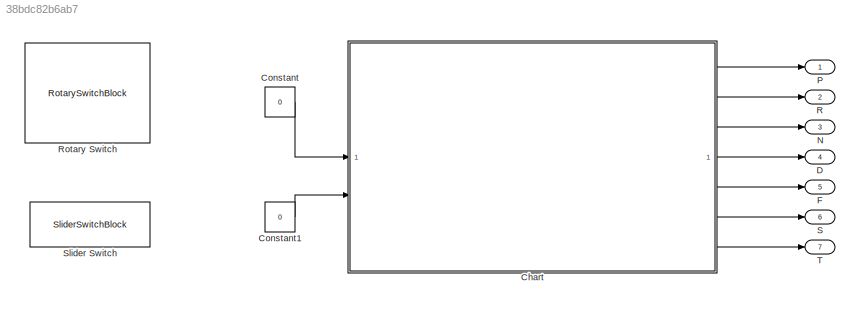
MODEL slx_38bdc82b6ab7
KIND model
CONFIG AbsTol = auto
CONFIG EnableMultiTasking = off
CONFIG FixedStep = auto
CONFIG MaxStep = auto
CONFIG MinStep = auto
CONFIG RelTol = 1e-3
CONFIG SampleTimeConstraint = Unconstrained
CONFIG SolverName = VariableStepAuto
CONFIG StartTime = 0.0
CONFIG StopTime = inf
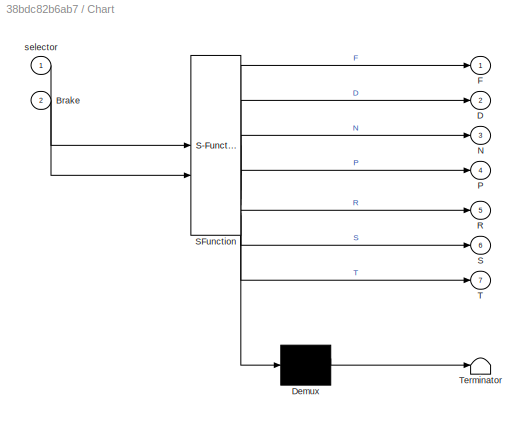
BLOCK [SubSystem] Chart
  ErrorFcn = Stateflow.Translate.translate
  PermitHierarchicalResolution = ExplicitOnly
  PortSchema = {"entries":[{"content":{"sides":[{"content":{"connectorIds":["In1","In2"]},"type":"ConnectorPlacement.EquallySpacedRectSide","uuid":"e4c66ebb-7da8-44e5-99b8-7444c5aa35cd"},{"content":{"connectorIds":["Out4","Out5","Out3","Out2","Out1","Out6","Out7"],"side":"RIGHT"},"type":"ConnectorPlacement.EquallySpacedRectSide","uuid":"c40422dc-742f-4821-91a3-3b1c75b25b89"},{"content":{"side":"TOP"},"type":"Con...<+270ch>
  SFBlockType = Chart
  TreatAsAtomicUnit = on
BLOCK [Demux] Chart/ Demux 
  Outputs = 1
BLOCK [S-Function] Chart/ SFunction 
  EnableBusSupport = off
  FunctionName = sf_sfun
  PortCounts = [2 8]
  SFcnIsStateOwnerBlock = off
  SFunctionDeploymentMode = off
  Tag = Stateflow S-Function 3
BLOCK [Terminator] Chart/ Terminator 
BLOCK [Inport] Chart/Brake
  Port = 2
BLOCK [Outport] Chart/D
  Port = 2
BLOCK [Outport] Chart/F
BLOCK [Outport] Chart/N
  Port = 3
BLOCK [Outport] Chart/P
  Port = 4
BLOCK [Outport] Chart/R
  Port = 5
BLOCK [Outport] Chart/S
  Port = 6
BLOCK [Outport] Chart/T
  Port = 7
BLOCK [Inport] Chart/selector
BLOCK [Constant] Constant
  OutDataTypeStr = uint8
  Value = 0
BLOCK [Constant] Constant1
  OutDataTypeStr = uint8
  Value = 0
BLOCK [Outport] D
  OutDataTypeStr = uint8
  Port = 4
BLOCK [Outport] F
  OutDataTypeStr = uint8
  Port = 5
BLOCK [Outport] N
  OutDataTypeStr = uint8
  Port = 3
BLOCK [Outport] P
  OutDataTypeStr = uint8
BLOCK [Outport] R
  OutDataTypeStr = uint8
  Port = 2
BLOCK [RotarySwitchBlock] Rotary Switch
BLOCK [Outport] S
  OutDataTypeStr = uint8
  Port = 6
BLOCK [SliderSwitchBlock] Slider Switch
BLOCK [Outport] T
  OutDataTypeStr = uint8
  Port = 7
LINE Chart:1 -> F:1
LINE Chart:2 -> D:1
LINE Chart:3 -> N:1
LINE Chart:4 -> P:1
LINE Chart:5 -> R:1
LINE Chart:6 -> S:1
LINE Chart:7 -> T:1
LINE Constant1:1 -> Chart:2
LINE Constant:1 -> Chart:1
CHART Chart states=7 transitions=13
  STATE_LABEL 'parking\nduring:\nP=1;\nR=0;\nN=0;\nD=0;\nF=0;\nS=0;\nT=0;'
  STATE_LABEL 'reverse\nduring:\nP=0;\nR=1;\nN=0;\nD=0;\nF=0;\nS=0;\nT=0;'
  STATE_LABEL 'neutral\nduring:\nP=0;\nR=0;\nN=1;\nD=0;\nF=0;\nS=0;\nT=0;'
  STATE_LABEL 'drive\nduring:\nP=0;\nR=0;\nN=0;\nD=1;\nF=0;\nS=0;\nT=0;'
  STATE_LABEL 'primera\nduring:\nP=0;\nR=0;\nN=0;\nD=0;\nF=1;\nS=0;\nT=0;'
  STATE_LABEL 'segunda\nduring:\nP=0;\nR=0;\nN=0;\nD=0;\nF=0;\nS=1;\nT=0;'
  STATE_LABEL 'tercera\nduring:\nP=0;\nR=0;\nN=0;\nD=0;\nF=0;\nS=0;\nT=1;'
CHART  states=0 transitions=0
